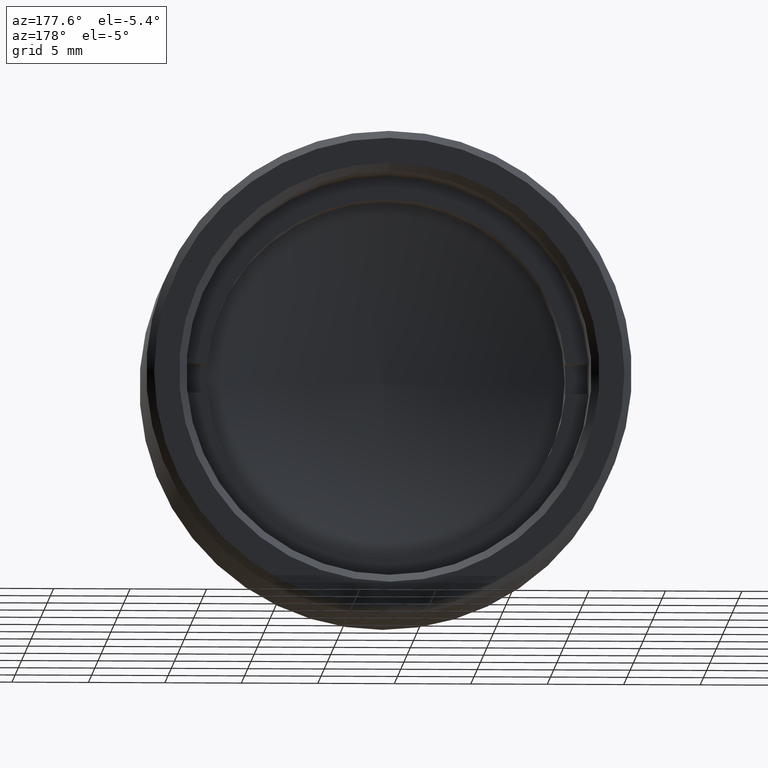
[diagram: clean part render]
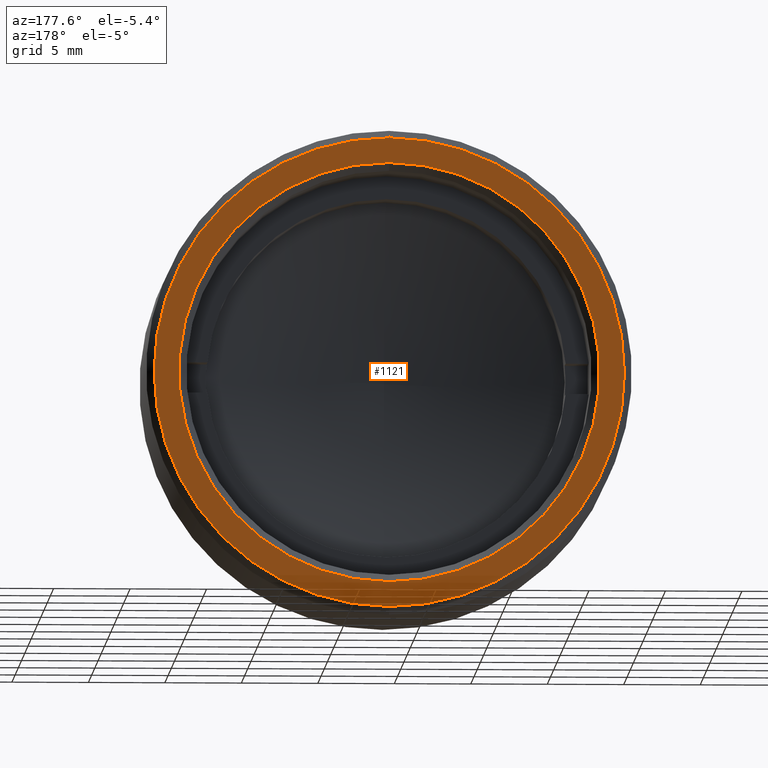
[diagram: same view with one face highlighted and labeled with its STEP entity id]
A machine part, auxiliary view. The second image highlights one B-rep face of the part: STEP entity #1121.
In plain terms, the highlighted planar face has unit normal (-0, 1, 0).
Its self-contained STEP definition (entity closure, byte-faithful):
#16 = CIRCLE ( 'NONE', #765, 15.37500000000000355 ) ;
#20 = PLANE ( 'NONE',  #1187 ) ;
#103 = CARTESIAN_POINT ( 'NONE',  ( -62.96855859389910393, 20.65316592187942035, 19.92647029529263492 ) ) ;
#113 = CIRCLE ( 'NONE', #608, 15.37500000000000355 ) ;
#174 = AXIS2_PLACEMENT_3D ( 'NONE', #994, #898, #1465 ) ;
#175 = CARTESIAN_POINT ( 'NONE',  ( -62.96855859389910393, 20.65316592187942035, 19.92647029529263492 ) ) ;
#201 = VERTEX_POINT ( 'NONE', #658 ) ;
#205 = CARTESIAN_POINT ( 'NONE',  ( -62.96855859389910393, 20.65316592187942035, 19.92647029529263492 ) ) ;
#212 = DIRECTION ( 'NONE',  ( 0.000000000000000000, 1.000000000000000000, 0.000000000000000000 ) ) ;
#262 = CARTESIAN_POINT ( 'NONE',  ( -62.96855859389910393, 20.65316592187942035, 33.67647029529263847 ) ) ;
#303 = VERTEX_POINT ( 'NONE', #262 ) ;
#344 = FACE_BOUND ( 'NONE', #617, .T. ) ;
#376 = DIRECTION ( 'NONE',  ( 0.000000000000000000, 0.000000000000000000, 1.000000000000000000 ) ) ;
#439 = VERTEX_POINT ( 'NONE', #785 ) ;
#459 = CIRCLE ( 'NONE', #174, 13.75000000000000178 ) ;
#477 = EDGE_CURVE ( 'NONE', #303, #201, #1161, .T. ) ;
#510 = AXIS2_PLACEMENT_3D ( 'NONE', #103, #959, #376 ) ;
#568 = DIRECTION ( 'NONE',  ( 1.000000000000000000, 0.000000000000000000, 0.000000000000000000 ) ) ;
#587 = EDGE_CURVE ( 'NONE', #201, #303, #459, .T. ) ;
#591 = CARTESIAN_POINT ( 'NONE',  ( -62.96855859389910393, 20.65316592187942035, 4.551470295292635804 ) ) ;
#608 = AXIS2_PLACEMENT_3D ( 'NONE', #205, #212, #1491 ) ;
#617 = EDGE_LOOP ( 'NONE', ( #1055, #1481 ) ) ;
#658 = CARTESIAN_POINT ( 'NONE',  ( -62.96855859389910393, 20.65316592187942035, 6.176470295292635804 ) ) ;
#693 = VERTEX_POINT ( 'NONE', #591 ) ;
#765 = AXIS2_PLACEMENT_3D ( 'NONE', #175, #1097, #1344 ) ;
#785 = CARTESIAN_POINT ( 'NONE',  ( -62.96855859389910393, 20.65316592187942035, 35.30147029529263847 ) ) ;
#787 = ORIENTED_EDGE ( 'NONE', *, *, #1509, .T. ) ;
#802 = CARTESIAN_POINT ( 'NONE',  ( -47.09355859389910393, 20.65316592187942035, 19.92647029529263492 ) ) ;
#806 = EDGE_LOOP ( 'NONE', ( #787, #955 ) ) ;
#898 = DIRECTION ( 'NONE',  ( 0.000000000000000000, -1.000000000000000000, 0.000000000000000000 ) ) ;
#955 = ORIENTED_EDGE ( 'NONE', *, *, #1018, .T. ) ;
#959 = DIRECTION ( 'NONE',  ( 0.000000000000000000, -1.000000000000000000, 0.000000000000000000 ) ) ;
#994 = CARTESIAN_POINT ( 'NONE',  ( -62.96855859389910393, 20.65316592187942035, 19.92647029529263492 ) ) ;
#1018 = EDGE_CURVE ( 'NONE', #439, #693, #16, .T. ) ;
#1042 = DIRECTION ( 'NONE',  ( -0.000000000000000000, 1.000000000000000000, 0.000000000000000000 ) ) ;
#1055 = ORIENTED_EDGE ( 'NONE', *, *, #477, .T. ) ;
#1097 = DIRECTION ( 'NONE',  ( 0.000000000000000000, 1.000000000000000000, 0.000000000000000000 ) ) ;
#1121 = ADVANCED_FACE ( 'NONE', ( #1278, #344 ), #20, .T. ) ;
#1161 = CIRCLE ( 'NONE', #510, 13.75000000000000178 ) ;
#1187 = AXIS2_PLACEMENT_3D ( 'NONE', #802, #1042, #568 ) ;
#1278 = FACE_OUTER_BOUND ( 'NONE', #806, .T. ) ;
#1344 = DIRECTION ( 'NONE',  ( 0.000000000000000000, 0.000000000000000000, 1.000000000000000000 ) ) ;
#1465 = DIRECTION ( 'NONE',  ( 0.000000000000000000, 0.000000000000000000, 1.000000000000000000 ) ) ;
#1481 = ORIENTED_EDGE ( 'NONE', *, *, #587, .T. ) ;
#1491 = DIRECTION ( 'NONE',  ( 0.000000000000000000, 0.000000000000000000, 1.000000000000000000 ) ) ;
#1509 = EDGE_CURVE ( 'NONE', #693, #439, #113, .T. ) ;